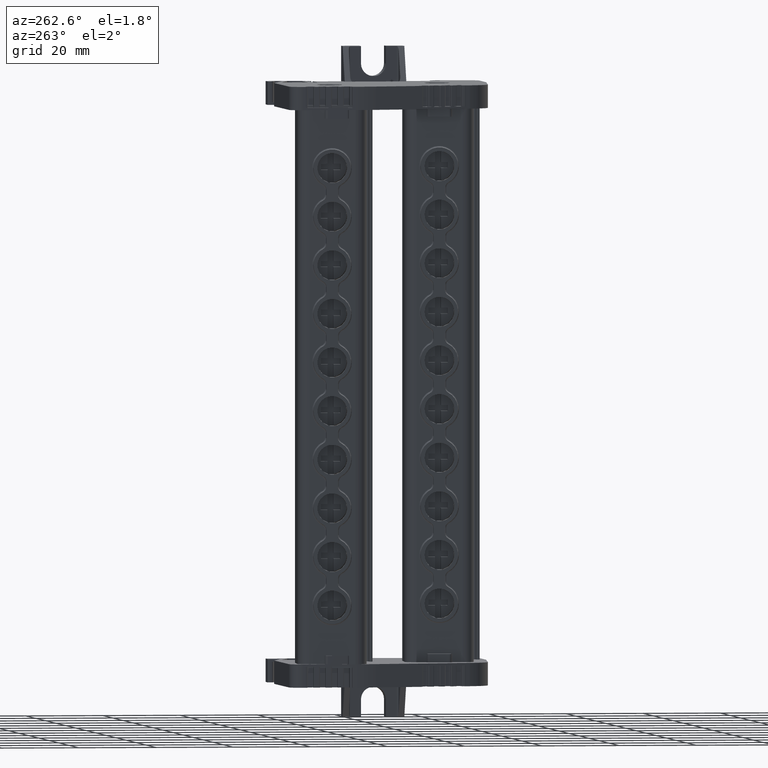
[diagram: clean part render]
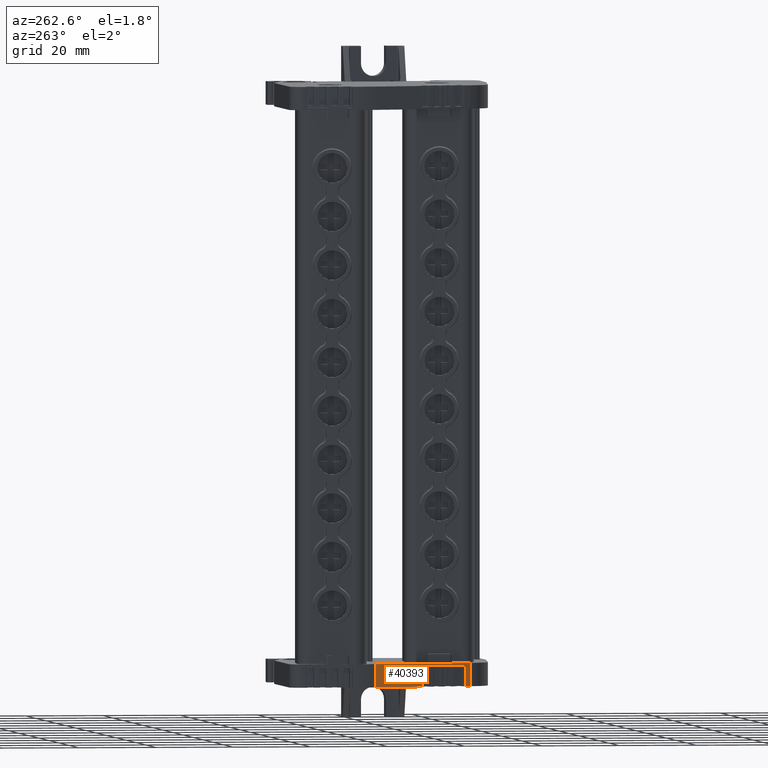
[diagram: same view with one face highlighted and labeled with its STEP entity id]
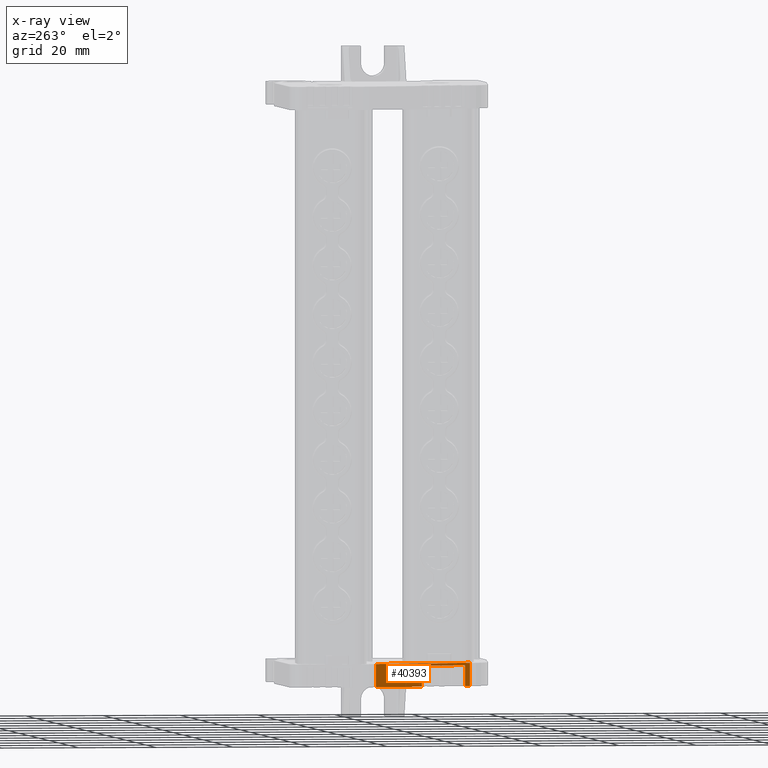
[diagram: x-ray of the same camera — body ghosted, the highlighted face saturated]
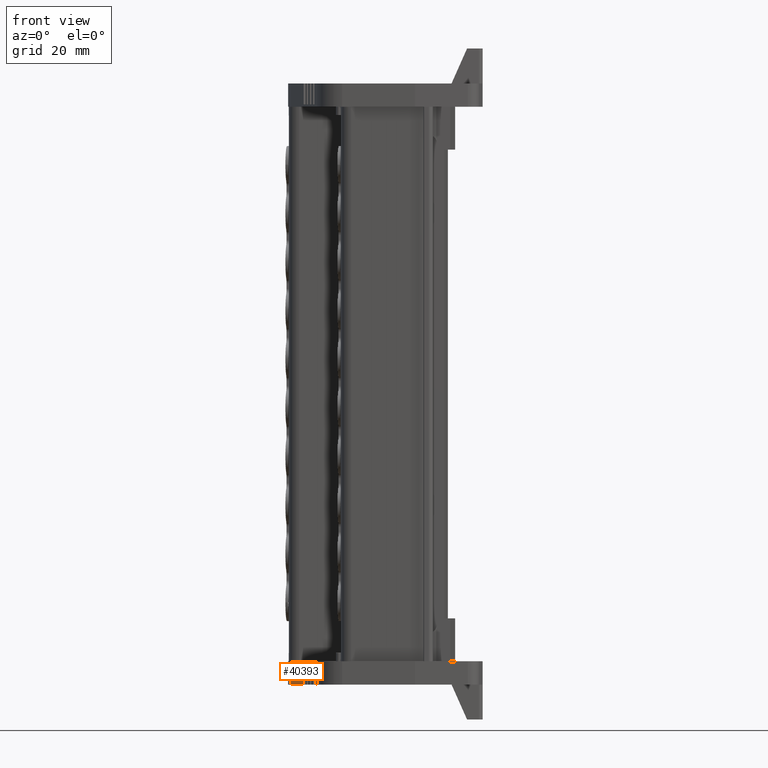
[diagram: same view with one face highlighted and labeled with its STEP entity id]
A machine part, auxiliary view. The second image highlights one B-rep face of the part: STEP entity #40393.
The next image is the same camera in x-ray: the body ghosted, the highlighted face saturated — about 0% of this face is hidden behind the body in this view.
A second angle (front view) of the same face is appended — the face is thin or edge-on in the first view.
In plain terms, the highlighted planar face has unit normal (0.9659, 0.2588, -0).
Its self-contained STEP definition (entity closure, byte-faithful):
#3524 = CARTESIAN_POINT ( 'NONE',  ( 1873.781482314725300, 763.8917013937460800, 5.399859037222180200 ) ) ;
#3535 = LINE ( 'NONE', #3571, #53389 ) ;
#3545 = DIRECTION ( 'NONE',  ( 0.0000000000000000000, 0.0000000000000000000, 1.000000000000000000 ) ) ;
#3571 = CARTESIAN_POINT ( 'NONE',  ( 1873.436717906886500, 765.1783783114893800, 5.998782997044410000 ) ) ;
#3587 = DIRECTION ( 'NONE',  ( -0.2588193020252079800, 0.9659257574468050900, 0.0000000000000000000 ) ) ;
#3595 = LINE ( 'NONE', #3524, #53438 ) ;
#3622 = LINE ( 'NONE', #3654, #53508 ) ;
#3654 = CARTESIAN_POINT ( 'NONE',  ( 1870.327995856912600, 776.7802746048356500, 5.998782997044410000 ) ) ;
#3705 = DIRECTION ( 'NONE',  ( -0.0000000000000000000, -0.0000000000000000000, -1.000000000000000000 ) ) ;
#4956 = LINE ( 'NONE', #4972, #65818 ) ;
#4961 = DIRECTION ( 'NONE',  ( -0.2588193020251364800, 0.9659257574468243000, -0.0000000000000000000 ) ) ;
#4972 = CARTESIAN_POINT ( 'NONE',  ( 1867.012363143719800, 789.1543711843579600, 0.009543398822096212100 ) ) ;
#4987 = CARTESIAN_POINT ( 'NONE',  ( 1873.436717906885000, 765.1783783114889300, 0.009543398822096212100 ) ) ;
#5015 = DIRECTION ( 'NONE',  ( -0.2588193020245824200, 0.9659257574469727300, -0.0000000000000000000 ) ) ;
#5023 = LINE ( 'NONE', #4987, #65833 ) ;
#5570 = EDGE_CURVE ( 'NONE', #57555, #35775, #51074, .T. ) ;
#5594 = EDGE_CURVE ( 'NONE', #57652, #57555, #51235, .T. ) ;
#5676 = EDGE_CURVE ( 'NONE', #35735, #57652, #50504, .T. ) ;
#9256 = EDGE_LOOP ( 'NONE', ( #63493, #63490, #63450, #63470, #63500, #63477, #63480, #63505 ) ) ;
#11579 = AXIS2_PLACEMENT_3D ( 'NONE', #25050, #25043, #25021 ) ;
#25021 = DIRECTION ( 'NONE',  ( -0.2588193020252079800, 0.9659257574468050900, 0.0000000000000000000 ) ) ;
#25031 = FACE_OUTER_BOUND ( 'NONE', #9256, .T. ) ;
#25043 = DIRECTION ( 'NONE',  ( 0.9659257574468050900, 0.2588193020252079800, -0.0000000000000000000 ) ) ;
#25050 = CARTESIAN_POINT ( 'NONE',  ( 1873.781482314725300, 763.8917013937460800, 5.998782997044410000 ) ) ;
#25052 = PLANE ( 'NONE',  #11579 ) ;
#28797 = CARTESIAN_POINT ( 'NONE',  ( 1873.778260529238700, 763.9037252480674200, 0.009543398822095886000 ) ) ;
#30005 = CARTESIAN_POINT ( 'NONE',  ( 1870.327995856911500, 776.7802746048347400, 0.009543398822095967500 ) ) ;
#30127 = CARTESIAN_POINT ( 'NONE',  ( 1870.327995856912400, 776.7802746048354300, 5.399859037222180200 ) ) ;
#30172 = CARTESIAN_POINT ( 'NONE',  ( 1873.436717906885900, 765.1783783114890400, 0.009543398822095967500 ) ) ;
#30210 = CARTESIAN_POINT ( 'NONE',  ( 1873.436717906886100, 765.1783783114892700, 5.399859037222180200 ) ) ;
#30459 = CARTESIAN_POINT ( 'NONE',  ( 1867.012363143718200, 789.1543711843573900, 0.009543398822096049000 ) ) ;
#34342 = CARTESIAN_POINT ( 'NONE',  ( 1873.778260529239300, 763.9037252480651400, 5.998782997044410000 ) ) ;
#34444 = CARTESIAN_POINT ( 'NONE',  ( 1867.012363143717300, 789.1543711843571600, 5.998782997044410000 ) ) ;
#35579 = VERTEX_POINT ( 'NONE', #30005 ) ;
#35622 = VERTEX_POINT ( 'NONE', #30210 ) ;
#35626 = VERTEX_POINT ( 'NONE', #30127 ) ;
#35645 = VERTEX_POINT ( 'NONE', #30172 ) ;
#35735 = VERTEX_POINT ( 'NONE', #30459 ) ;
#35775 = VERTEX_POINT ( 'NONE', #28797 ) ;
#40393 = ADVANCED_FACE ( 'NONE', ( #25031 ), #25052, .F. ) ;
#42011 = EDGE_CURVE ( 'NONE', #35579, #35735, #4956, .T. ) ;
#42039 = EDGE_CURVE ( 'NONE', #35775, #35645, #5023, .T. ) ;
#42697 = EDGE_CURVE ( 'NONE', #35645, #35622, #3535, .T. ) ;
#42703 = EDGE_CURVE ( 'NONE', #35622, #35626, #3595, .T. ) ;
#42744 = EDGE_CURVE ( 'NONE', #35626, #35579, #3622, .T. ) ;
#50493 = CARTESIAN_POINT ( 'NONE',  ( 1867.012363143716100, 789.1543711843569300, 5.998782997044410000 ) ) ;
#50504 = LINE ( 'NONE', #50493, #80240 ) ;
#50526 = DIRECTION ( 'NONE',  ( -0.0000000000000000000, -0.0000000000000000000, 1.000000000000000000 ) ) ;
#51074 = LINE ( 'NONE', #51116, #80131 ) ;
#51076 = DIRECTION ( 'NONE',  ( 0.0000000000000000000, 0.0000000000000000000, -1.000000000000000000 ) ) ;
#51116 = CARTESIAN_POINT ( 'NONE',  ( 1873.778260529238400, 763.9037252480645700, 5.998782997044410000 ) ) ;
#51168 = DIRECTION ( 'NONE',  ( 0.2588193020251718900, -0.9659257574468147500, 0.0000000000000000000 ) ) ;
#51206 = CARTESIAN_POINT ( 'NONE',  ( 1867.012363143719800, 789.1543711843579600, 5.998782997044410000 ) ) ;
#51235 = LINE ( 'NONE', #51206, #80185 ) ;
#53389 = VECTOR ( 'NONE', #3545, 1000.000000000000000 ) ;
#53438 = VECTOR ( 'NONE', #3587, 1000.000000000000000 ) ;
#53508 = VECTOR ( 'NONE', #3705, 1000.000000000000000 ) ;
#57555 = VERTEX_POINT ( 'NONE', #34342 ) ;
#57652 = VERTEX_POINT ( 'NONE', #34444 ) ;
#63450 = ORIENTED_EDGE ( 'NONE', *, *, #5676, .F. ) ;
#63470 = ORIENTED_EDGE ( 'NONE', *, *, #42011, .F. ) ;
#63477 = ORIENTED_EDGE ( 'NONE', *, *, #42703, .F. ) ;
#63480 = ORIENTED_EDGE ( 'NONE', *, *, #42697, .F. ) ;
#63490 = ORIENTED_EDGE ( 'NONE', *, *, #5594, .F. ) ;
#63493 = ORIENTED_EDGE ( 'NONE', *, *, #5570, .F. ) ;
#63500 = ORIENTED_EDGE ( 'NONE', *, *, #42744, .F. ) ;
#63505 = ORIENTED_EDGE ( 'NONE', *, *, #42039, .F. ) ;
#65818 = VECTOR ( 'NONE', #4961, 1000.000000000000100 ) ;
#65833 = VECTOR ( 'NONE', #5015, 1000.000000000000000 ) ;
#80131 = VECTOR ( 'NONE', #51076, 1000.000000000000000 ) ;
#80185 = VECTOR ( 'NONE', #51168, 1000.000000000000100 ) ;
#80240 = VECTOR ( 'NONE', #50526, 1000.000000000000000 ) ;